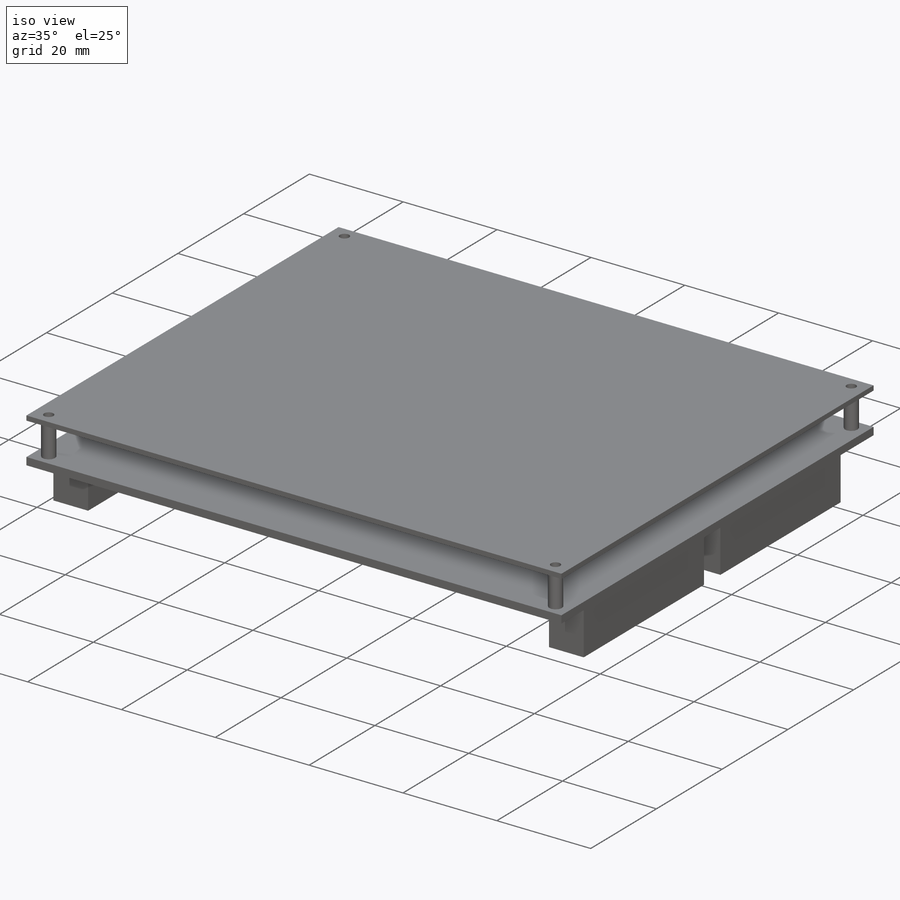
[diagram: iso view]
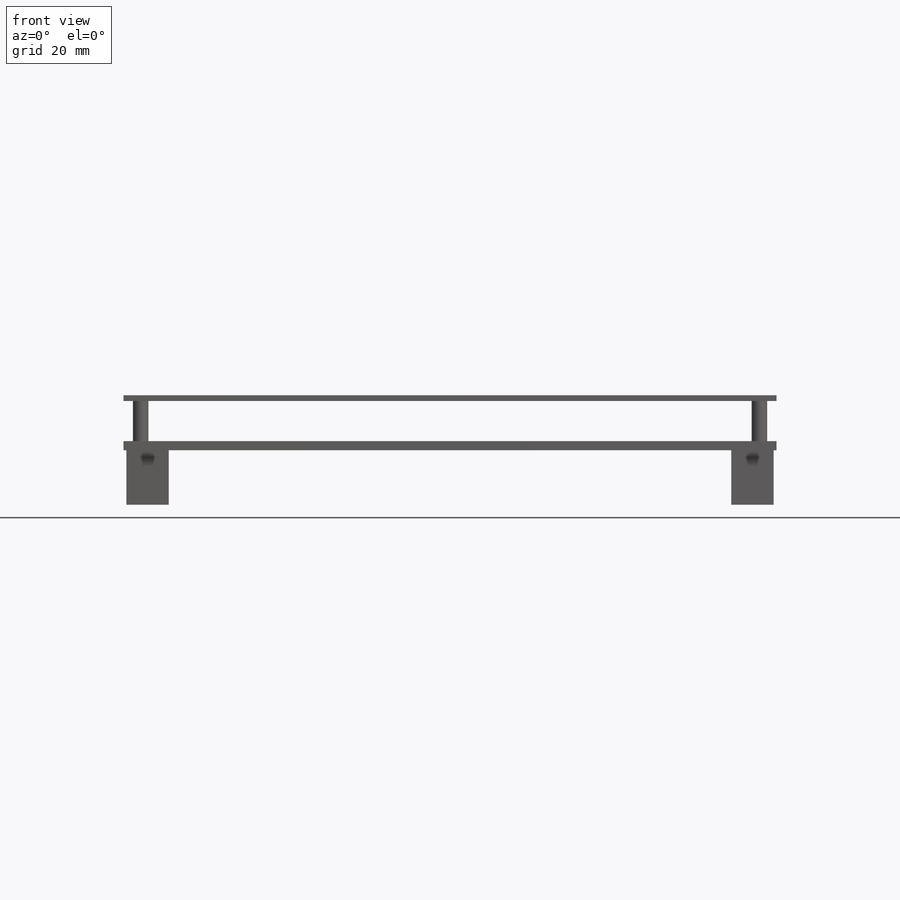
[diagram: front view]
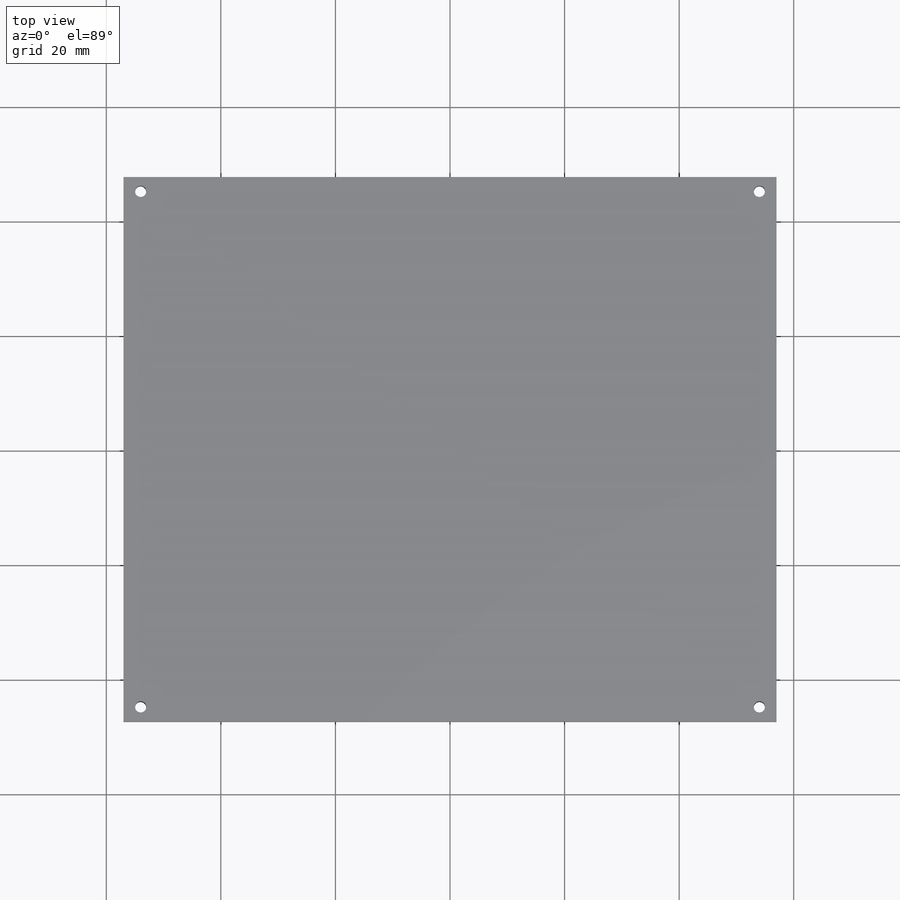
[diagram: top view]
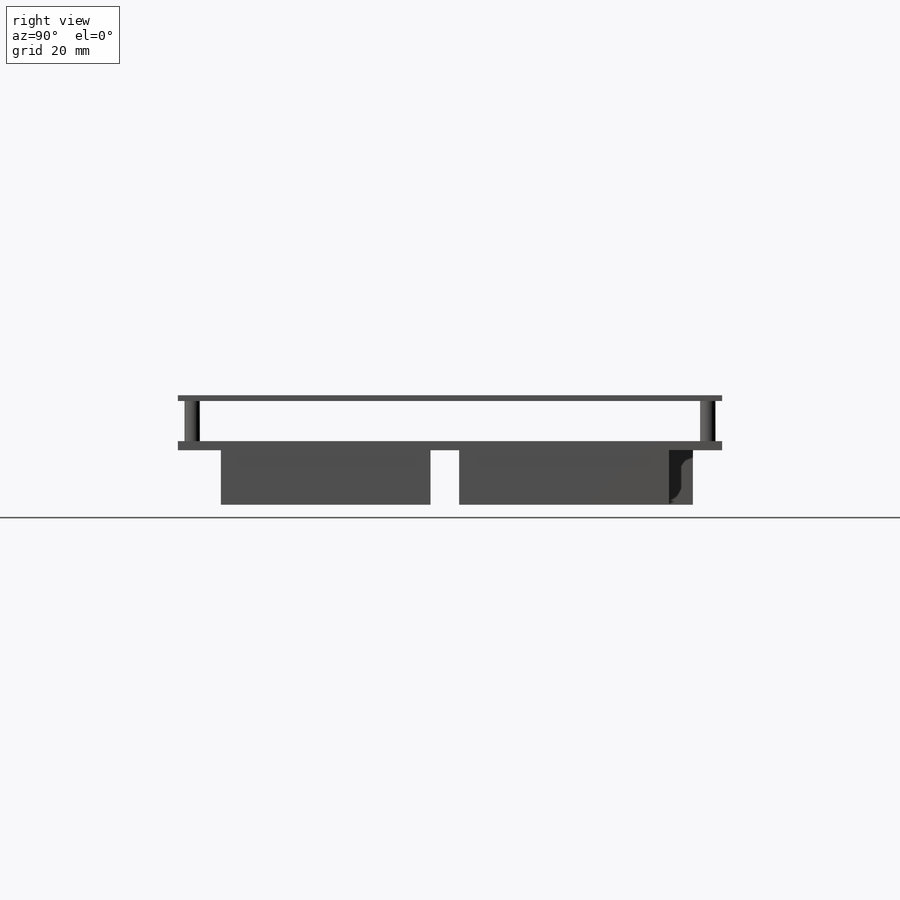
[diagram: right view]
SOLIDWORKS PART (.sldprt)
format: sldprt  version: not decoded by parser v0  size: 347,648 bytes
history: native  units: mm
features: sketch x5, extrude x4, material x1, cut_extrude x1 (+11 scaffold rows collapsed)
feature tree (22):
  scaffold x11  (default folders/planes/origin — collapsed)
  material  "Material <not specified>"
  sketch  "Sketch3"  dims[D1=114.0mm D2=95.0mm D3=57.0mm D4=47.5mm]
  extrude  "Extrude1"  Depth=1.6mm
  sketch  "Sketch4"  dims[D1=36.6mm D2=7.4mm D3=5.1mm D4=9.3mm D5=50.9mm D6=50.9mm D7=0.5mm D8=0.5mm]
  extrude  "Extrude2"  Depth=9.5mm
  sketch  "Sketch5"  dims[c1.D1=5.4mm c1.D2=2.7mm c2.D1=3.0mm c2.D2=3.0mm c2.D3=3.0mm c2.D4=2.5mm c2.D5=2.5mm]
  extrude  "Extrude3"  Depth=7mm
  sketch  "Sketch7"
  extrude  "Extrude4"  Depth=1mm
  sketch  "Sketch8"  dims[D1=2.0mm]
  cut_extrude  "Cut-Extrude1"  [1 undecoded]
decode coverage: 8 of 10 modeling features carry decoded parameters
note: 1 parameter value undecoded
note: suppression state not decoded; provenance and decode notes live in map.json
